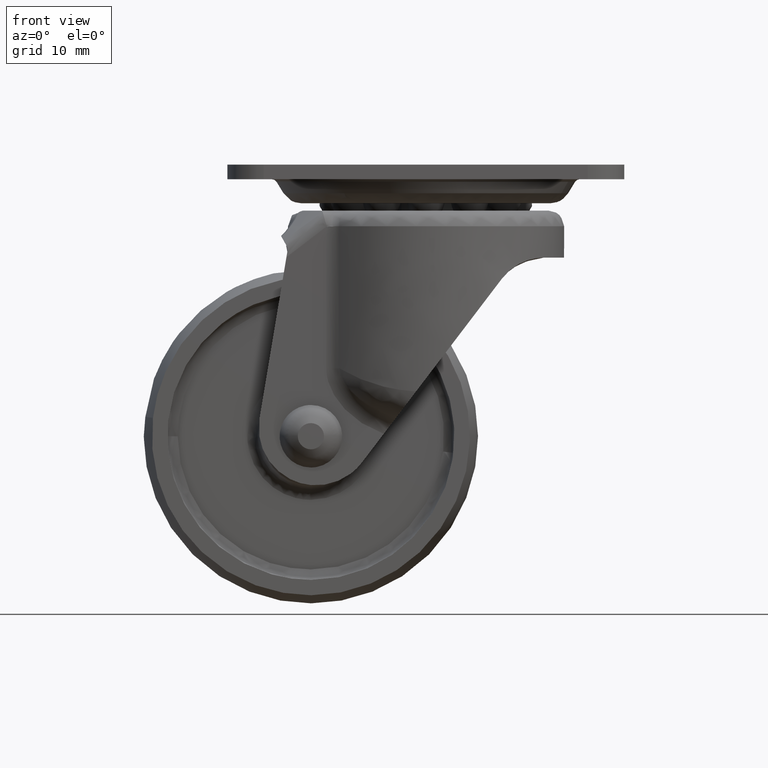
[diagram: clean part render]
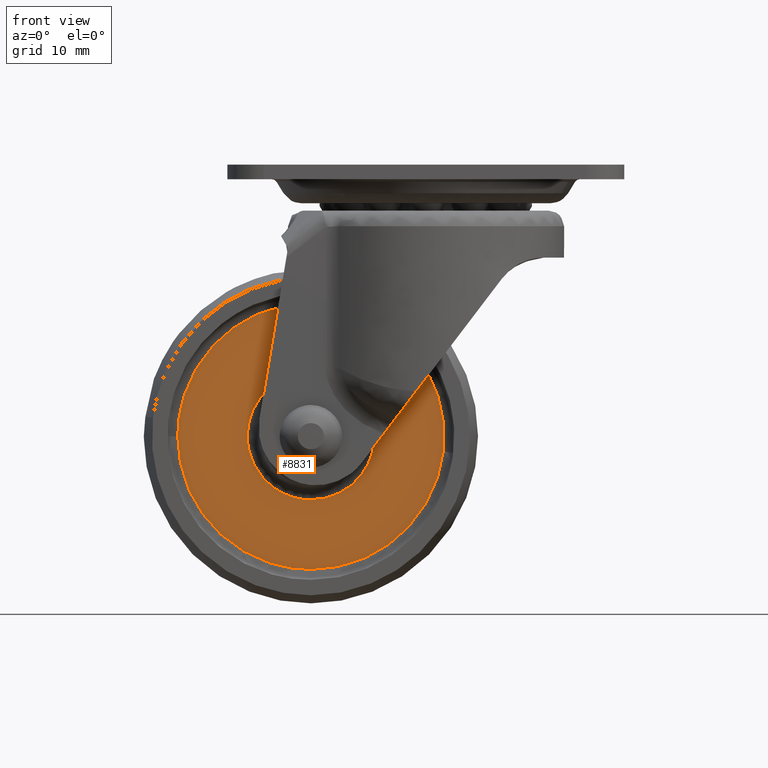
[diagram: same view with one face highlighted and labeled with its STEP entity id]
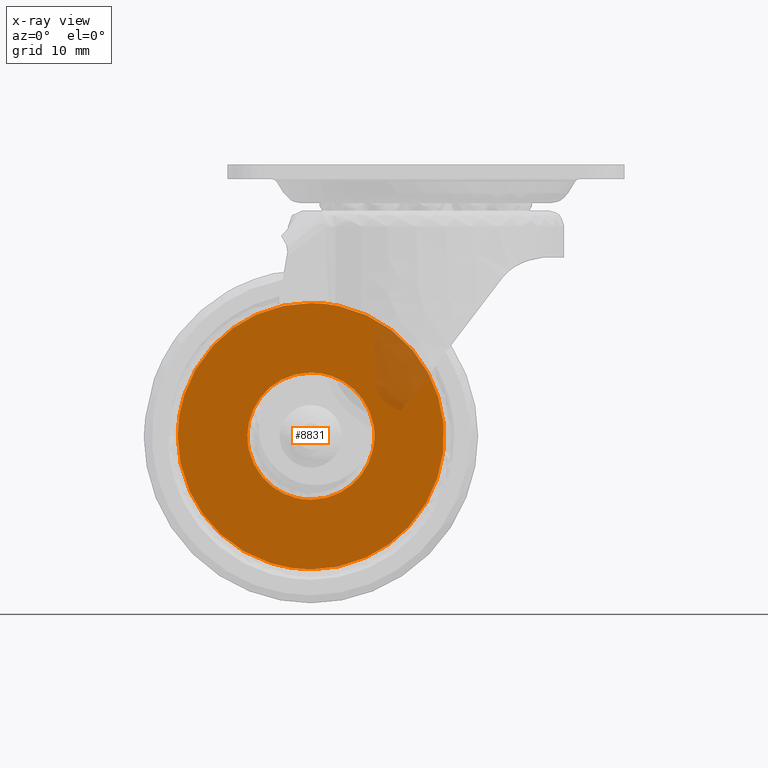
[diagram: x-ray of the same camera — body ghosted, the highlighted face saturated]
A machine part, front view. The second image highlights one B-rep face of the part: STEP entity #8831.
The next image is the same camera in x-ray: the body ghosted, the highlighted face saturated — about 7% of this face is hidden behind the body in this view.
In plain terms, the highlighted face is a freeform B-spline surface patch.
Its self-contained STEP definition (entity closure, byte-faithful):
#7854=CARTESIAN_POINT('',(-5.939128001851977,-4.500000000000000,-1.331761324811598));
#7855=VERTEX_POINT('',#7854);
#7869=CARTESIAN_POINT('',(0.0,-4.500000000000000,-6.086610687883469));
#7870=VERTEX_POINT('',#7869);
#7871=CARTESIAN_POINT('',(-5.939128001851977,-4.500000000000000,-1.331761324811598));
#7872=CARTESIAN_POINT('',(-4.872923589810946,-4.500000000000000,-6.086610687883469));
#7873=CARTESIAN_POINT('',(0.0,-4.500000000000000,-6.086610687883469));
#7881=(BOUNDED_CURVE()B_SPLINE_CURVE(2,(#7871,#7872,#7873),.UNSPECIFIED.,.F.,.U.)B_SPLINE_CURVE_WITH_KNOTS((3,3),(0.787436176731849,1.0),.UNSPECIFIED.)CURVE()GEOMETRIC_REPRESENTATION_ITEM()RATIONAL_B_SPLINE_CURVE((0.925416950434625,0.750965990398790,1.0))REPRESENTATION_ITEM(''));
#7882=EDGE_CURVE('',#7855,#7870,#7881,.T.);
#7884=CARTESIAN_POINT('',(6.005573235463825,-4.500000000000001,0.989909136432713));
#7885=VERTEX_POINT('',#7884);
#7886=CARTESIAN_POINT('',(0.0,-4.500000000000000,-6.086610687883469));
#7887=CARTESIAN_POINT('',(6.086610687883469,-4.500000000000000,-6.086610687883468));
#7888=CARTESIAN_POINT('',(6.086610687883470,-4.500000000000000,8.173480E-016));
#7889=CARTESIAN_POINT('',(6.086610687883471,-4.500000000000000,0.498271586386520));
#7890=CARTESIAN_POINT('',(6.005573235463825,-4.500000000000001,0.989909136432713));
#7898=(BOUNDED_CURVE()B_SPLINE_CURVE(2,(#7886,#7887,#7888,#7889,#7890),.UNSPECIFIED.,.F.,.U.)B_SPLINE_CURVE_WITH_KNOTS((3,2,3),(0.0,0.250000000000000,0.277993892544852),.UNSPECIFIED.)CURVE()GEOMETRIC_REPRESENTATION_ITEM()RATIONAL_B_SPLINE_CURVE((1.0,0.707106781186547,1.0,0.967203114821682,0.941751129479266))REPRESENTATION_ITEM(''));
#7899=EDGE_CURVE('',#7870,#7885,#7898,.T.);
#7951=CARTESIAN_POINT('',(0.0,-4.500000000000000,6.086610687883471));
#7952=VERTEX_POINT('',#7951);
#7953=CARTESIAN_POINT('',(6.005573235463825,-4.500000000000001,0.989909136432713));
#7954=CARTESIAN_POINT('',(5.165474960060585,-4.500000000000001,6.086610687883471));
#7955=CARTESIAN_POINT('',(0.0,-4.500000000000000,6.086610687883471));
#7963=(BOUNDED_CURVE()B_SPLINE_CURVE(2,(#7953,#7954,#7955),.UNSPECIFIED.,.F.,.U.)B_SPLINE_CURVE_WITH_KNOTS((3,3),(0.277993892544852,0.500000000000000),.UNSPECIFIED.)CURVE()GEOMETRIC_REPRESENTATION_ITEM()RATIONAL_B_SPLINE_CURVE((0.941751129479266,0.739903666364865,1.0))REPRESENTATION_ITEM(''));
#7964=EDGE_CURVE('',#7885,#7952,#7963,.T.);
#7966=CARTESIAN_POINT('',(0.0,-4.500000000000000,6.086610687883471));
#7967=CARTESIAN_POINT('',(-6.086610687883469,-4.500000000000000,6.086610687883471));
#7968=CARTESIAN_POINT('',(-6.086610687883470,-4.500000000000000,8.173480E-016));
#7969=CARTESIAN_POINT('',(-6.086610687883470,-4.500000000000000,-0.674046969122559));
#7970=CARTESIAN_POINT('',(-5.939128001851977,-4.500000000000000,-1.331761324811597));
#7978=(BOUNDED_CURVE()B_SPLINE_CURVE(2,(#7966,#7967,#7968,#7969,#7970),.UNSPECIFIED.,.F.,.U.)B_SPLINE_CURVE_WITH_KNOTS((3,2,3),(0.500000000000000,0.750000000000000,0.787436176731850),.UNSPECIFIED.)CURVE()GEOMETRIC_REPRESENTATION_ITEM()RATIONAL_B_SPLINE_CURVE((1.0,0.707106781186547,1.0,0.956140790787757,0.925416950434623))REPRESENTATION_ITEM(''));
#7979=EDGE_CURVE('',#7952,#7855,#7978,.T.);
#8015=CARTESIAN_POINT('',(12.664723395109540,-4.500000000000000,-1.472168924008367));
#8016=VERTEX_POINT('',#8015);
#8017=CARTESIAN_POINT('',(0.0,-4.500000000000000,12.750000000000000));
#8018=VERTEX_POINT('',#8017);
#8019=CARTESIAN_POINT('',(12.664723395109537,-4.500000000000000,-1.472168924008367));
#8020=CARTESIAN_POINT('',(12.750000000000000,-4.500000000000001,-0.738554321016328));
#8021=CARTESIAN_POINT('',(12.750000000000000,-4.500000000000000,8.173480E-016));
#8022=CARTESIAN_POINT('',(12.749999999999998,-4.500000000000000,12.749999999999998));
#8023=CARTESIAN_POINT('',(0.0,-4.500000000000000,12.750000000000000));
#8031=(BOUNDED_CURVE()B_SPLINE_CURVE(2,(#8019,#8020,#8021,#8022,#8023),.UNSPECIFIED.,.F.,.U.)B_SPLINE_CURVE_WITH_KNOTS((3,2,3),(0.229999999999514,0.250000000000000,0.500000000000000),.UNSPECIFIED.)CURVE()GEOMETRIC_REPRESENTATION_ITEM()RATIONAL_B_SPLINE_CURVE((0.956886118189702,0.976568542494354,1.0,0.707106781186548,1.0))REPRESENTATION_ITEM(''));
#8032=EDGE_CURVE('',#8016,#8018,#8031,.T.);
#8051=CARTESIAN_POINT('',(-12.750000000088271,-4.500000000000000,0.0));
#8052=VERTEX_POINT('',#8051);
#8066=CARTESIAN_POINT('',(0.0,-4.500000000000000,12.750000000000000));
#8067=CARTESIAN_POINT('',(-12.749999999999936,-4.500000000000001,12.749999999999998));
#8068=CARTESIAN_POINT('',(-12.750000000088274,-4.500000000000000,0.0));
#8076=(BOUNDED_CURVE()B_SPLINE_CURVE(2,(#8066,#8067,#8068),.UNSPECIFIED.,.F.,.U.)B_SPLINE_CURVE_WITH_KNOTS((3,3),(0.500000000000000,0.749999999999999),.UNSPECIFIED.)CURVE()GEOMETRIC_REPRESENTATION_ITEM()RATIONAL_B_SPLINE_CURVE((1.0,0.707106781186549,0.999999999999998))REPRESENTATION_ITEM(''));
#8077=EDGE_CURVE('',#8018,#8052,#8076,.T.);
#8105=CARTESIAN_POINT('',(0.0,-4.500000000000000,-12.750000000000000));
#8106=VERTEX_POINT('',#8105);
#8107=CARTESIAN_POINT('',(0.0,-4.500000000000000,-12.750000000000000));
#8108=CARTESIAN_POINT('',(11.353769185510650,-4.500000000000000,-12.750000000000000));
#8109=CARTESIAN_POINT('',(12.664723395109537,-4.500000000000000,-1.472168924008367));
#8117=(BOUNDED_CURVE()B_SPLINE_CURVE(2,(#8107,#8108,#8109),.UNSPECIFIED.,.F.,.U.)B_SPLINE_CURVE_WITH_KNOTS((3,3),(0.0,0.229999999999513),.UNSPECIFIED.)CURVE()GEOMETRIC_REPRESENTATION_ITEM()RATIONAL_B_SPLINE_CURVE((1.0,0.730538238692194,0.956886118189702))REPRESENTATION_ITEM(''));
#8118=EDGE_CURVE('',#8106,#8016,#8117,.T.);
#8120=CARTESIAN_POINT('',(-12.750000000088274,-4.500000000000000,0.0));
#8121=CARTESIAN_POINT('',(-12.749999999999993,-4.500000000000001,-12.750000000000000));
#8122=CARTESIAN_POINT('',(0.0,-4.500000000000000,-12.750000000000000));
#8130=(BOUNDED_CURVE()B_SPLINE_CURVE(2,(#8120,#8121,#8122),.UNSPECIFIED.,.F.,.U.)B_SPLINE_CURVE_WITH_KNOTS((3,3),(0.750000000000000,1.0),.UNSPECIFIED.)CURVE()GEOMETRIC_REPRESENTATION_ITEM()RATIONAL_B_SPLINE_CURVE((1.000000000000000,0.707106781186548,1.0))REPRESENTATION_ITEM(''));
#8131=EDGE_CURVE('',#8052,#8106,#8130,.T.);
#8814=CARTESIAN_POINT('',(-14.023721520283580,-4.500000000000000,-14.023724950576050));
#8815=CARTESIAN_POINT('',(-14.023721520283580,-4.500000000000000,14.023725634539350));
#8816=CARTESIAN_POINT('',(14.023653527366751,-4.500000000000000,-14.023724950576050));
#8817=CARTESIAN_POINT('',(14.023653527366751,-4.500000000000000,14.023725634539350));
#8818=B_SPLINE_SURFACE_WITH_KNOTS('',1,1,((#8814,#8816),(#8815,#8817)),.UNSPECIFIED.,.F.,.F.,.U.,(2,2),(2,2),(0.0,28.047450585115399),(0.0,28.047375047650331),.UNSPECIFIED.);
#8819=ORIENTED_EDGE('',*,*,#8118,.T.);
#8820=ORIENTED_EDGE('',*,*,#8032,.T.);
#8821=ORIENTED_EDGE('',*,*,#8077,.T.);
#8822=ORIENTED_EDGE('',*,*,#8131,.T.);
#8823=EDGE_LOOP('',(#8819,#8820,#8821,#8822));
#8824=FACE_OUTER_BOUND('',#8823,.T.);
#8825=ORIENTED_EDGE('',*,*,#7899,.F.);
#8826=ORIENTED_EDGE('',*,*,#7882,.F.);
#8827=ORIENTED_EDGE('',*,*,#7979,.F.);
#8828=ORIENTED_EDGE('',*,*,#7964,.F.);
#8829=EDGE_LOOP('',(#8825,#8826,#8827,#8828));
#8830=FACE_BOUND('',#8829,.T.);
#8831=ADVANCED_FACE('',(#8824,#8830),#8818,.F.);